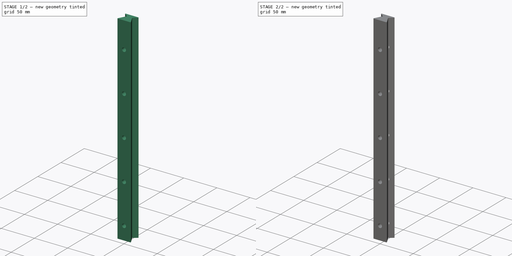
[diagram: build sequence overview — one tinted view per stage of 2, left to right]
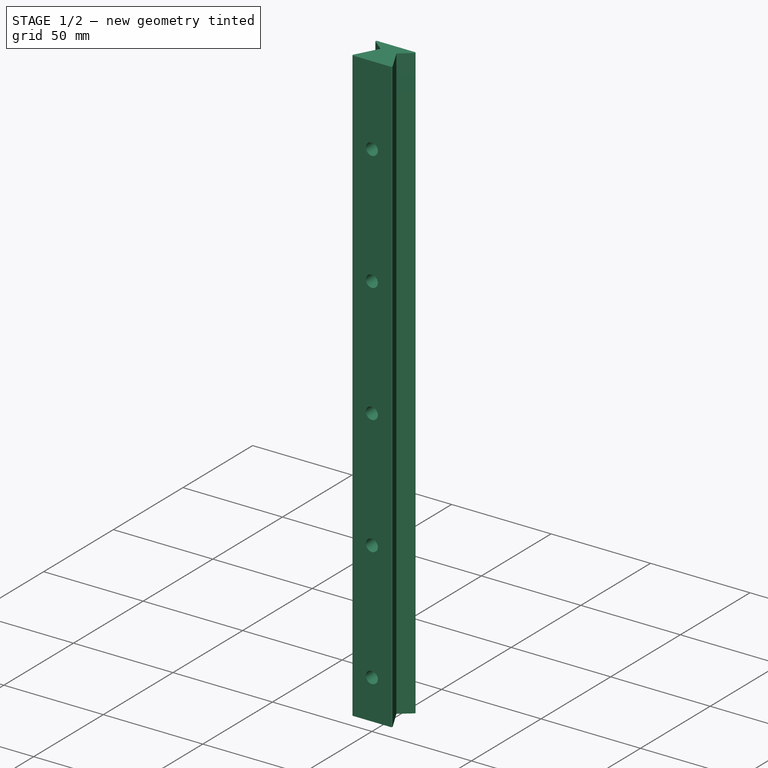
[diagram: stage 1 of 2 — iso view after this stage's code; geometry added in this stage tinted green]
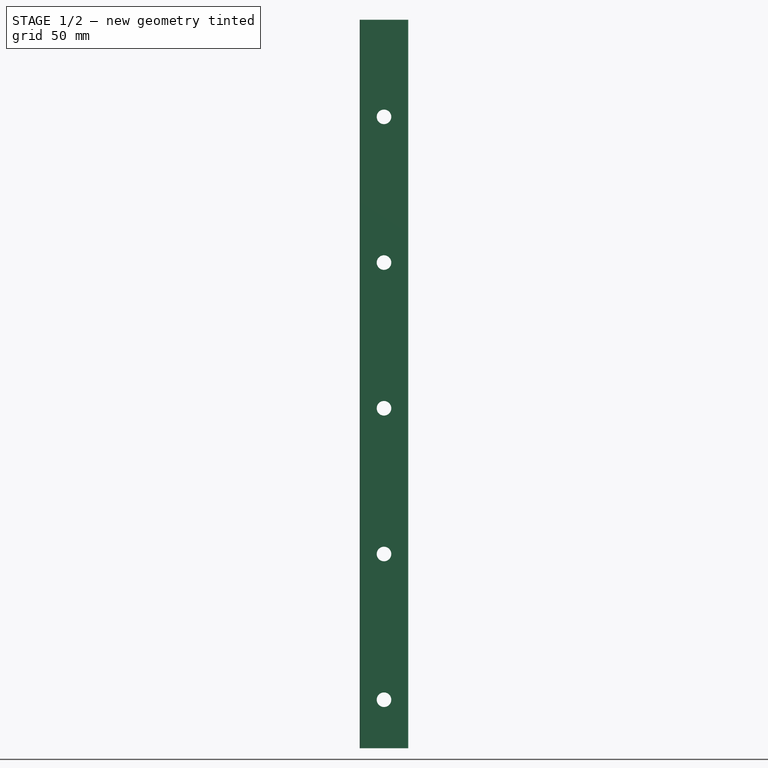
[diagram: stage 1 of 2 — front view after this stage's code; geometry added in this stage tinted green]
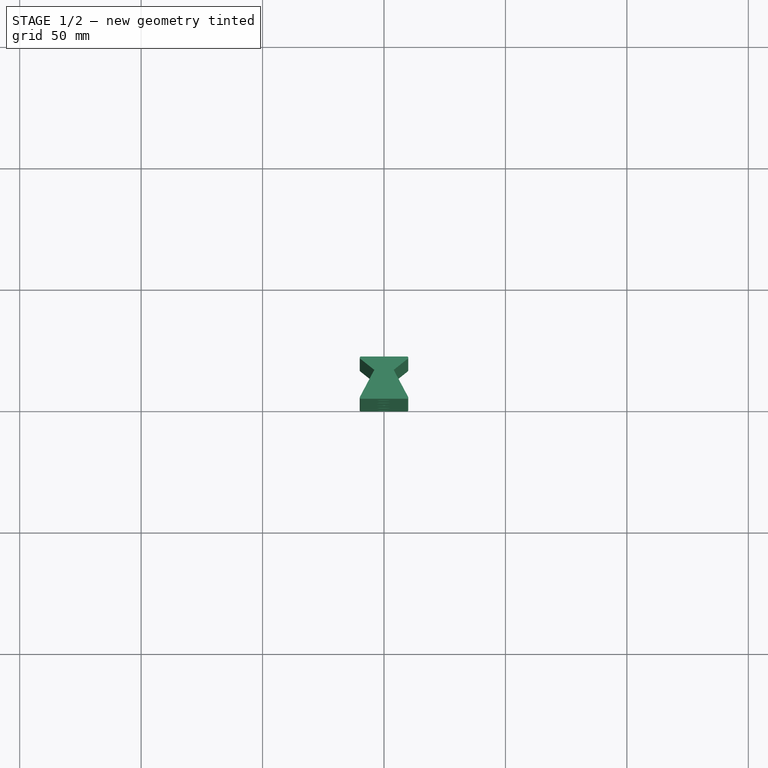
[diagram: stage 1 of 2 — top view after this stage's code; geometry added in this stage tinted green]
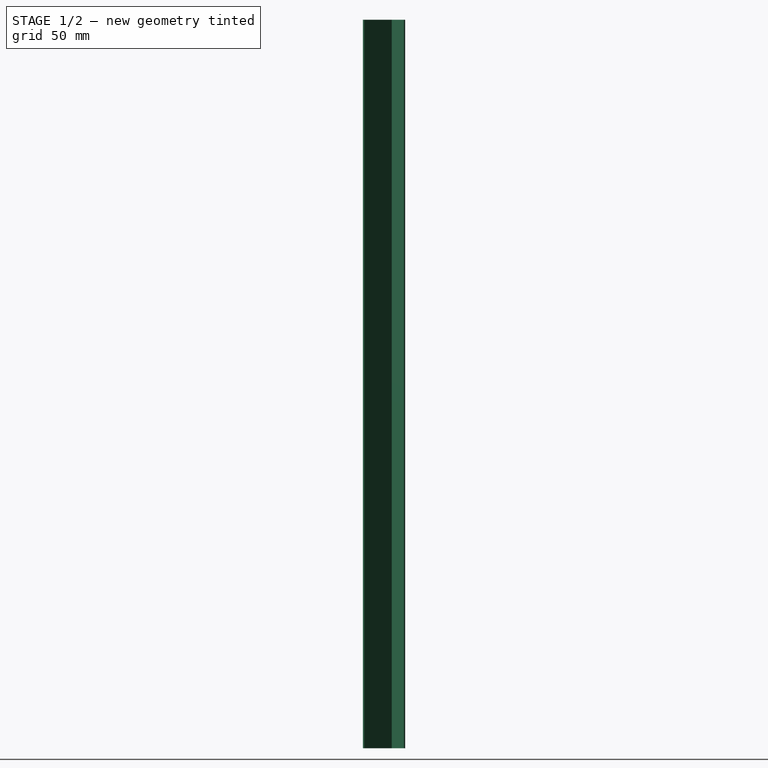
[diagram: stage 1 of 2 — right view after this stage's code; geometry added in this stage tinted green]
FCSTD DOCUMENT  (FreeCAD 0.21R33771 (Git))
Label: Guida-quadra-20-300
License: All rights reserved
LicenseURL: https://en.wikipedia.org/wiki/All_rights_reserved
objects: Sketcher::SketchObject×3, PartDesign::Pocket×2, PartDesign::Pad×1, PartDesign::CoordinateSystem×1, PartDesign::Body×1
note: 11 computed .brp shape members not serialized (recipe doc carries the construction recipe); baked Part::Feature solids carry a one-line shape summary decoded from their .brp

FEATURE [Sketcher::SketchObject] Sketch
  FullyConstrained = true
  MapMode = 5
  Support = -> [XY_Plane]
  sketch-geometry (10):
    g0: LineSegment StartX=-9.5 StartY=0 StartZ=0 EndX=9.5 EndY=0 EndZ=0
    g1: LineSegment StartX=9.5 StartY=17.409 StartZ=0 EndX=-9.5 EndY=17.409 EndZ=0
    g2: LineSegment StartX=-9.81069 StartY=16.5173 StartZ=0 EndX=-4 EndY=11.909 EndZ=0
    g3: LineSegment StartX=-4 StartY=11.909 StartZ=0 EndX=-9.94147 EndY=0.734736 EndZ=0
    g4: LineSegment StartX=9.81069 StartY=16.5173 StartZ=0 EndX=4 EndY=11.909 EndZ=0
    g5: LineSegment StartX=4 StartY=11.909 StartZ=0 EndX=9.94147 EndY=0.734736 EndZ=0
    g6: ArcOfCircle CenterX=-9.5 CenterY=0.5 CenterZ=0 NormalX=0 NormalY=0 NormalZ=1 AngleXU=0 Radius=0.5 StartAngle=2.6529 EndAngle=4.71239
    g7: ArcOfCircle CenterX=9.5 CenterY=0.5 CenterZ=0 NormalX=0 NormalY=0 NormalZ=1 AngleXU=0 Radius=0.5 StartAngle=4.71239 EndAngle=6.77188
    g8: ArcOfCircle CenterX=-9.5 CenterY=16.909 CenterZ=0 NormalX=0 NormalY=0 NormalZ=1 AngleXU=0 Radius=0.5 StartAngle=1.5708 EndAngle=4.04189
    g9: ArcOfCircle CenterX=9.5 CenterY=16.909 CenterZ=0 NormalX=0 NormalY=0 NormalZ=1 AngleXU=0 Radius=0.5 StartAngle=5.38289 EndAngle=7.85398
  constraints (23):
    c: Coincident(g3,g2)
    c: Coincident(g5,g4)
    c: Equal(g0,g1)
    c: Tangent(g3,g6) = -1.5708
    c: Tangent(g0,g6) = -1.5708
    c: Tangent(g5,g7) = 1.5708
    c: Tangent(g0,g7) = -1.5708
    c: Radius(g7) = 0.5
    c: Equal(g6,g7)
    c: Tangent(g2,g8) = -1.5708
    c: Tangent(g1,g8) = -1.5708
    c: Tangent(g1,g9) = -1.5708
    c: Tangent(g4,g9) = 1.5708
    c: Symmetric(g6,g7,g-2)
    c: Symmetric(g8,g9,g-2)
    c: Equal(g7,g9)
    c: Equal(g9,g8)
    c: Symmetric(g2,g4,g-2)
    c: DistanceX(g6,g7) = 19
    c: DistanceY(g4,g9) = 5
    c: DistanceX(g2,g-1) = 4
    c: PointOnObject(g-1,g0)
    c: Angle(g5,g0) = 1.0821
FEATURE [PartDesign::Pad] Pad
  Direction = (0,0,1)
  Length = 300
  Length2 = 10
  Profile = -> Sketch
  ReferenceAxis = -> Sketch [N_Axis]
  Type = 0
FEATURE [Sketcher::SketchObject] Sketch001
  FullyConstrained = true
  MapMode = 5
  Placement = pos=(0,17.409,0) rot=(0,0.707107,0.707107;3.14159rad)
  Support = -> [Pad]
  sketch-geometry (9):
    g0: Circle CenterX=0 CenterY=20 CenterZ=0 NormalX=0 NormalY=0 NormalZ=1 AngleXU=0 Radius=3
    g1: Circle CenterX=0 CenterY=80 CenterZ=0 NormalX=0 NormalY=0 NormalZ=1 AngleXU=0 Radius=3
    g2: LineSegment StartX=0 StartY=20 StartZ=0 EndX=0 EndY=80 EndZ=0
    g3: Circle CenterX=-9.85e-12 CenterY=140 CenterZ=0 NormalX=0 NormalY=0 NormalZ=1 AngleXU=0 Radius=3
    g4: LineSegment StartX=0 StartY=80 StartZ=0 EndX=-9.85e-12 EndY=140 EndZ=0
    g5: Circle CenterX=-1.3252e-11 CenterY=200 CenterZ=0 NormalX=0 NormalY=0 NormalZ=1 AngleXU=0 Radius=3
    g6: LineSegment StartX=-9.85e-12 StartY=140 StartZ=0 EndX=-1.3252e-11 EndY=200 EndZ=0
    g7: Circle CenterX=-1.76438e-11 CenterY=260 CenterZ=0 NormalX=0 NormalY=0 NormalZ=1 AngleXU=0 Radius=3
    g8: LineSegment StartX=-1.3252e-11 StartY=200 StartZ=0 EndX=-1.76438e-11 EndY=260 EndZ=0
  constraints (23):
    c: PointOnObject(g0,g-2)
    c: Radius(g0) = 3
    c: DistanceY(g-1,g0) = 20
    c: Radius(g1) = 3
    c: Coincident(g0,g2)
    c: Coincident(g1,g2)
    c: Distance(g2) = 60
    c: Radius(g3) = 3
    c: Coincident(g1,g4)
    c: Coincident(g3,g4)
    c: Equal(g2,g4)
    c: Parallel(g4,g2)
    c: Radius(g5) = 3
    c: Coincident(g3,g6)
    c: Coincident(g5,g6)
    c: Equal(g2,g6)
    c: Parallel(g6,g2)
    c: Radius(g7) = 3
    c: Coincident(g5,g8)
    c: Coincident(g7,g8)
    c: Equal(g2,g8)
    c: Parallel(g8,g2)
    c: PointOnObject(g1,g-2)
FEATURE [PartDesign::Pocket] Pocket
  BaseFeature = -> Pad
  Direction = (0,-1,2e-16)
  Length = 5
  Length2 = 5
  Profile = -> Sketch001
  ReferenceAxis = -> Sketch001 [N_Axis]
  Type = 1
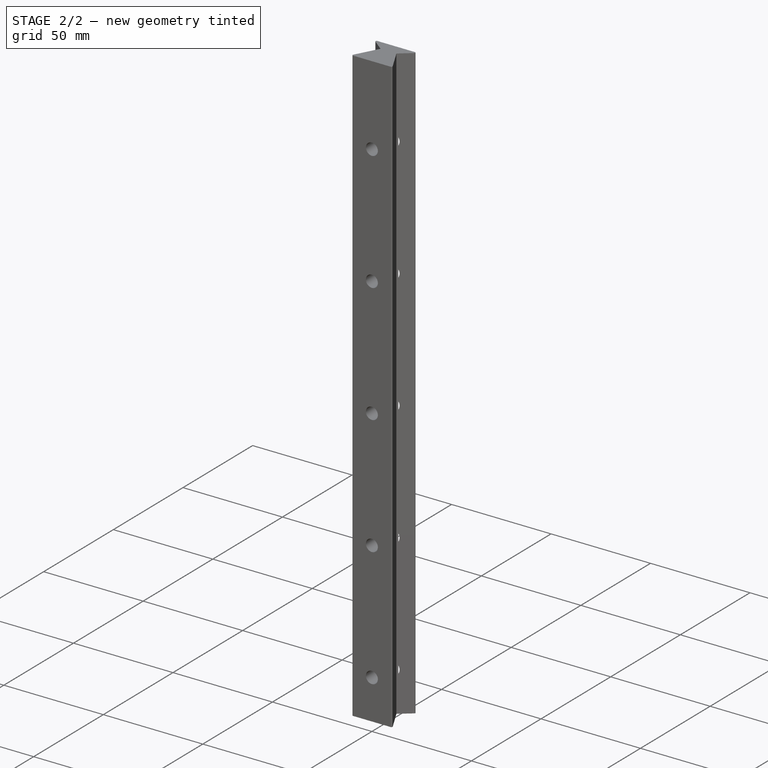
[diagram: stage 2 of 2 — iso view after this stage's code; geometry added in this stage tinted green]
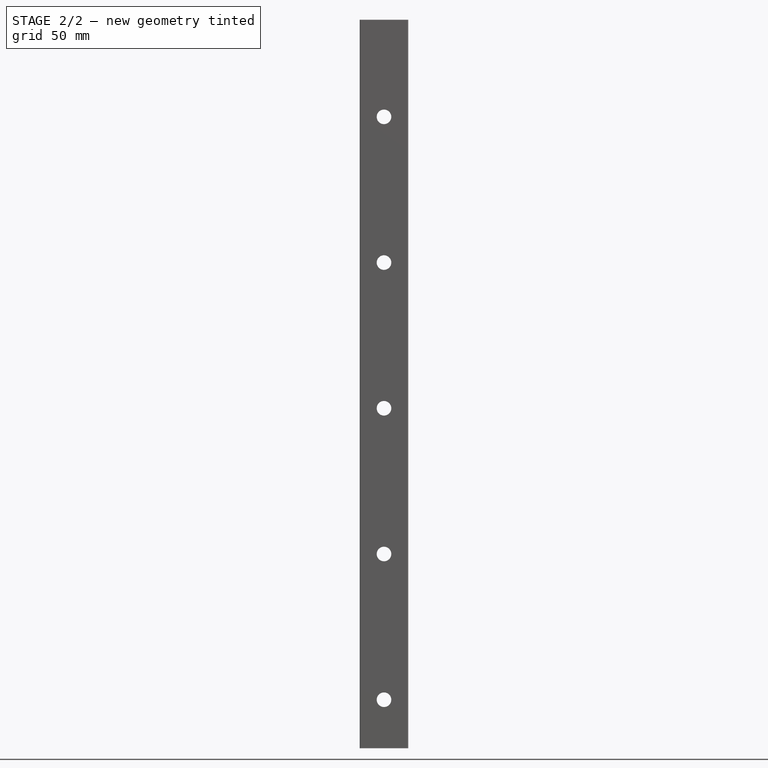
[diagram: stage 2 of 2 — front view after this stage's code; geometry added in this stage tinted green]
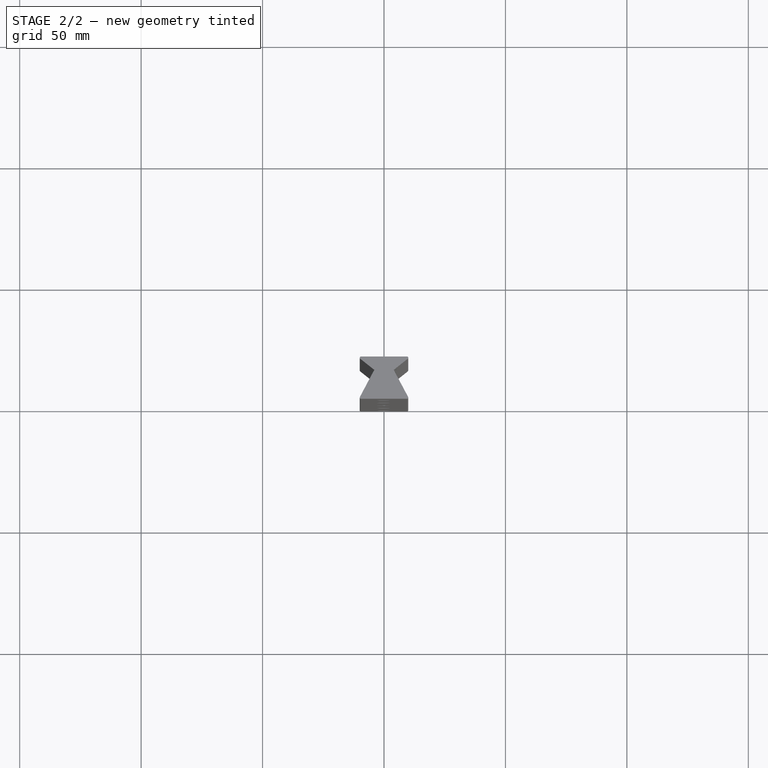
[diagram: stage 2 of 2 — top view after this stage's code; geometry added in this stage tinted green]
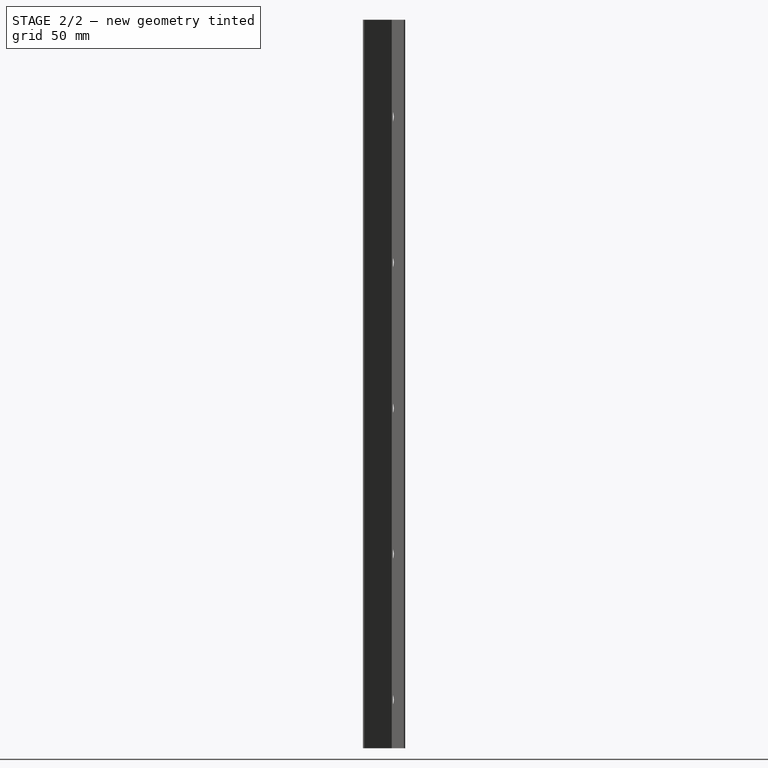
[diagram: stage 2 of 2 — right view after this stage's code; geometry added in this stage tinted green]
FEATURE [Sketcher::SketchObject] Sketch002
  ExternalGeometry = -> [Pocket]
  FullyConstrained = true
  MapMode = 5
  Placement = pos=(0,17.409,0) rot=(0,0.707107,0.707107;3.14159rad)
  Support = -> [Pocket]
  sketch-geometry (9):
    g0: Circle CenterX=-1.76438e-11 CenterY=260 CenterZ=0 NormalX=0 NormalY=0 NormalZ=1 AngleXU=0 Radius=5
    g1: Circle CenterX=-1.3252e-11 CenterY=200 CenterZ=0 NormalX=0 NormalY=0 NormalZ=1 AngleXU=0 Radius=5
    g2: LineSegment StartX=-1.76438e-11 StartY=260 StartZ=0 EndX=-1.3252e-11 EndY=200 EndZ=0
    g3: Circle CenterX=3.67901e-11 CenterY=140 CenterZ=0 NormalX=0 NormalY=0 NormalZ=1 AngleXU=0 Radius=5
    g4: LineSegment StartX=-1.3252e-11 StartY=200 StartZ=0 EndX=3.67901e-11 EndY=140 EndZ=0
    g5: Circle CenterX=7.47349e-11 CenterY=80 CenterZ=0 NormalX=0 NormalY=0 NormalZ=1 AngleXU=0 Radius=5
    g6: LineSegment StartX=3.67901e-11 StartY=140 StartZ=0 EndX=7.47349e-11 EndY=80 EndZ=0
    g7: Circle CenterX=1.08711e-10 CenterY=20 CenterZ=0 NormalX=0 NormalY=0 NormalZ=1 AngleXU=0 Radius=5
    g8: LineSegment StartX=7.47349e-11 StartY=80 StartZ=0 EndX=1.08711e-10 EndY=20 EndZ=0
  constraints (21):
    c: Coincident(g0,g-3)
    c: Radius(g0) = 5
    c: Radius(g1) = 5
    c: Coincident(g0,g2)
    c: Coincident(g1,g2)
    c: Radius(g3) = 5
    c: Coincident(g1,g4)
    c: Coincident(g3,g4)
    c: Equal(g2,g4)
    c: Parallel(g4,g2)
    c: Radius(g5) = 5
    c: Coincident(g3,g6)
    c: Coincident(g5,g6)
    c: Equal(g2,g6)
    c: Parallel(g6,g2)
    c: Radius(g7) = 5
    c: Coincident(g5,g8)
    c: Coincident(g7,g8)
    c: Equal(g2,g8)
    c: Parallel(g8,g2)
    c: Coincident(g1,g-4)
FEATURE [PartDesign::Pocket] Pocket001
  BaseFeature = -> Pocket
  Direction = (0,-1,2e-16)
  Length = 5
  Length2 = 5
  Profile = -> Sketch002
  ReferenceAxis = -> Sketch002 [N_Axis]
  Type = 0
FEATURE [PartDesign::CoordinateSystem] LCS_GuidaQuadra_20_300  label="LCS_GuidaQuadra-20-300"
  AttacherType = Attacher::AttachEngine3D
FEATURE [PartDesign::Body] Body
  Group = -> [Sketch,Pad,Sketch001,Pocket,Sketch002,Pocket001,LCS_GuidaQuadra_20_300]
  Origin = -> Origin
  Tip = -> Pocket001
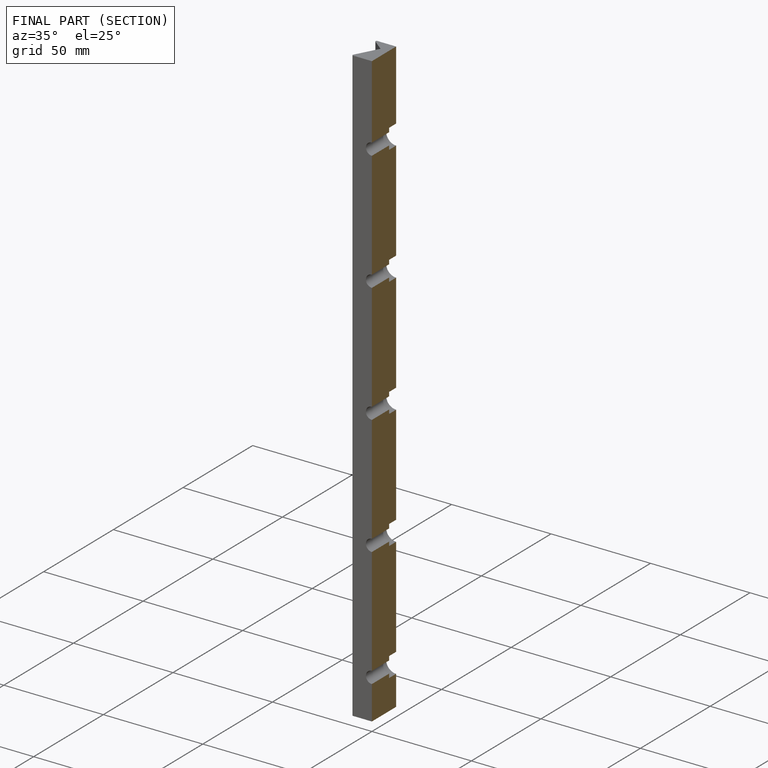
[diagram: finished part — half-section view (interior)]
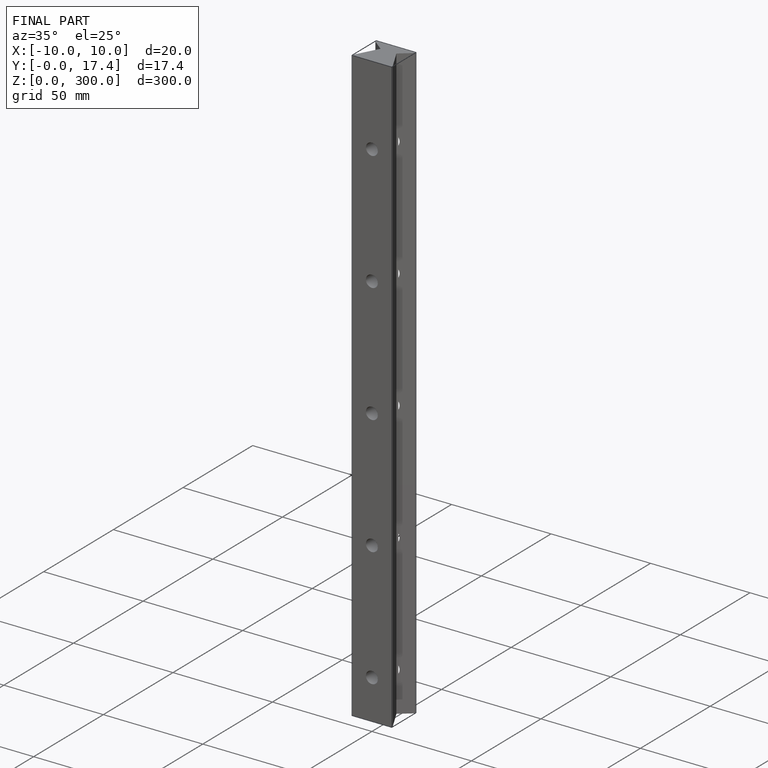
[diagram: finished part — iso view with bounding-box wireframe]
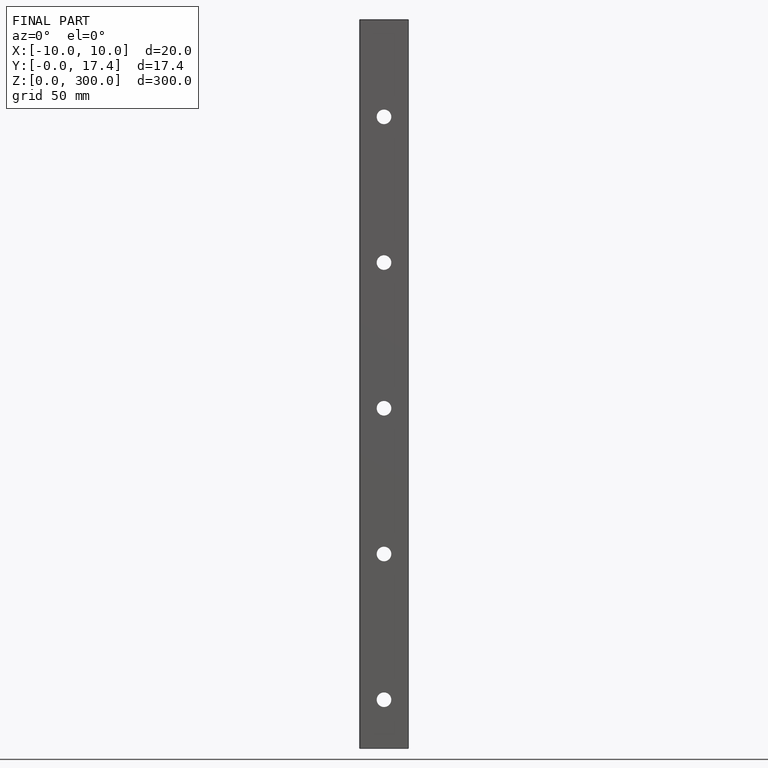
[diagram: finished part — front view with bounding-box wireframe]
